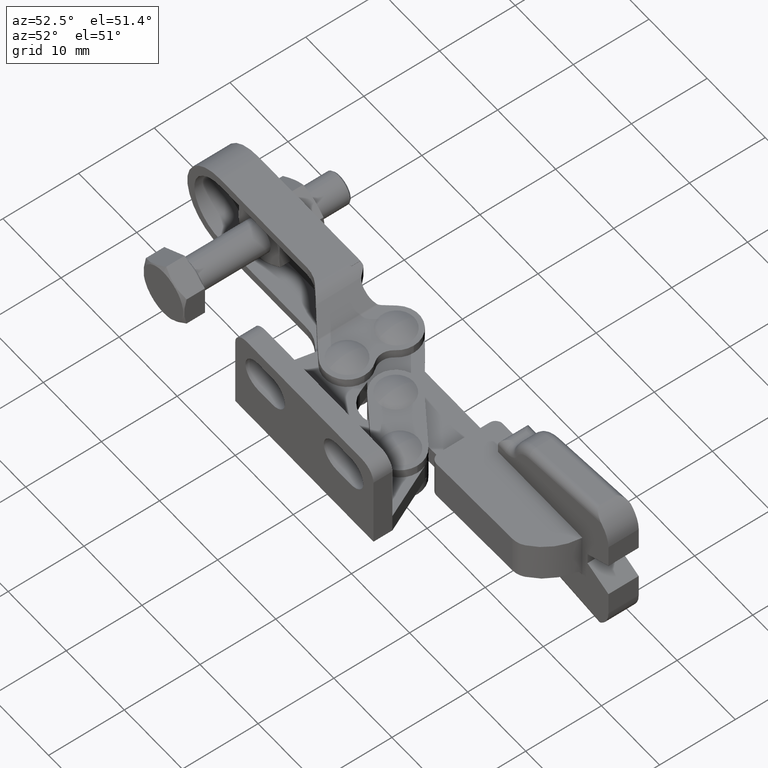
[diagram: clean part render]
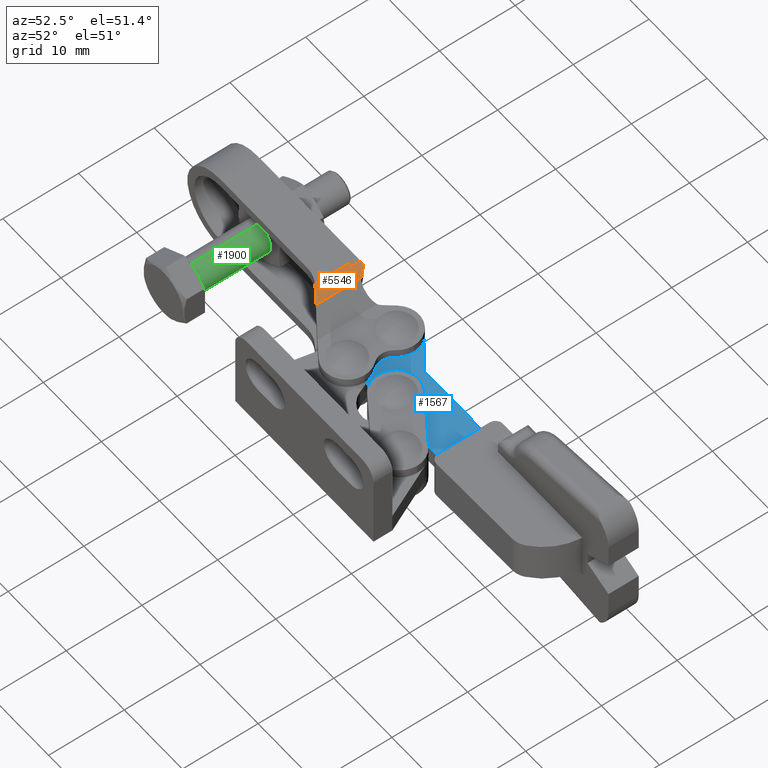
[diagram: same view with three faces highlighted in distinct colors, each labeled with its STEP entity id]
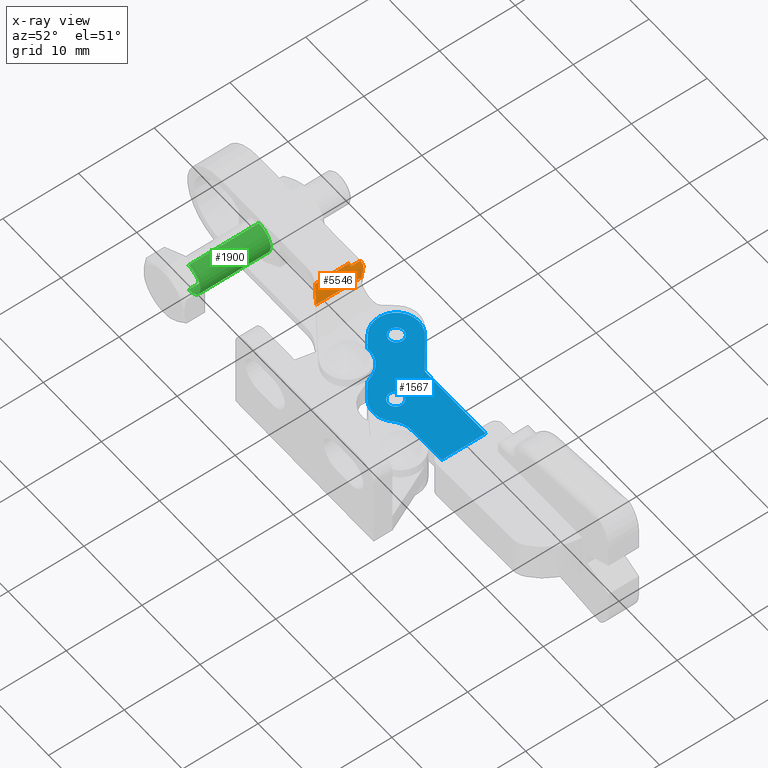
[diagram: x-ray of the same camera — body ghosted, the three highlighted faces saturated]
A machine part, auxiliary view with three faces highlighted in distinct colors.
The next image is the same camera in x-ray (body ghosted, the three faces saturated) — at least one of them is partly hidden behind the body in this view.
Their STEP definitions:

[orange] entity #5546 — the highlighted cylindrical surface (edge-blend (fillet) strip) has radius 2.5 mm, axis along (-0, -1, -0).
#161 = CARTESIAN_POINT ( 'NONE',  ( -1.190771694589143300, 11.57751467026061800, 4.930557301518804000 ) ) ;
#239 = FACE_OUTER_BOUND ( 'NONE', #7025, .T. ) ;
#408 = ORIENTED_EDGE ( 'NONE', *, *, #2439, .F. ) ;
#459 = ORIENTED_EDGE ( 'NONE', *, *, #2456, .F. ) ;
#486 = CARTESIAN_POINT ( 'NONE',  ( -2.994981057761837700, 12.81971024965994100, 5.700000000000003700 ) ) ;
#525 = ORIENTED_EDGE ( 'NONE', *, *, #1967, .F. ) ;
#558 = VERTEX_POINT ( 'NONE', #5991 ) ;
#777 = CARTESIAN_POINT ( 'NONE',  ( -1.447288955413503600, 17.85790549363638000, 5.176360654772312700 ) ) ;
#781 = VECTOR ( 'NONE', #9090, 1000.000000000000000 ) ;
#917 = DIRECTION ( 'NONE',  ( 8.308272860745645600E-016, 1.000000000000000000, 0.0000000000000000000 ) ) ;
#1015 = EDGE_CURVE ( 'NONE', #558, #6929, #3508, .T. ) ;
#1037 = CARTESIAN_POINT ( 'NONE',  ( -1.659584184231496000, 11.90037142297012800, 5.419322326891079700 ) ) ;
#1338 = DIRECTION ( 'NONE',  ( -1.000000000000000000, 1.387778780781422200E-015, 0.0000000000000000000 ) ) ;
#1386 = CARTESIAN_POINT ( 'NONE',  ( -1.190771694589143300, 11.57751467026061800, 4.930557301518804000 ) ) ;
#1430 = CARTESIAN_POINT ( 'NONE',  ( -2.957739136466280200, 12.79437083990551300, 5.699722592468653200 ) ) ;
#1619 = VERTEX_POINT ( 'NONE', #1386 ) ;
#1659 = B_SPLINE_CURVE_WITH_KNOTS ( 'NONE', 3,
 ( #5383, #4945, #9523, #5325 ),
 .UNSPECIFIED., .F., .F.,
 ( 4, 4 ),
 ( 0.001613464784808100900, 0.001773482547919055200 ),
 .UNSPECIFIED. ) ;
#1695 = EDGE_CURVE ( 'NONE', #7276, #8690, #4029, .T. ) ;
#1834 = CARTESIAN_POINT ( 'NONE',  ( -2.142370559212615900, 18.50000245742331400, 5.551414440528854600 ) ) ;
#1912 = CARTESIAN_POINT ( 'NONE',  ( -2.216557231561475700, 18.50000245742331000, 5.575722278971932500 ) ) ;
#1919 = CARTESIAN_POINT ( 'NONE',  ( -2.069504644189132000, 18.48332437619393400, 5.523482804202825700 ) ) ;
#1922 = CARTESIAN_POINT ( 'NONE',  ( -1.938645678743041500, 18.42189072394309000, 5.466987979795843200 ) ) ;
#1939 = CARTESIAN_POINT ( 'NONE',  ( -1.879568871632473000, 18.37664139310201600, 5.438010008170185600 ) ) ;
#1952 = CARTESIAN_POINT ( 'NONE',  ( -1.832446591762810300, 18.32009465725556300, 5.413258596586569400 ) ) ;
#1967 = EDGE_CURVE ( 'NONE', #3817, #1619, #6425, .T. ) ;
#2066 = EDGE_CURVE ( 'NONE', #6929, #6145, #8322, .T. ) ;
#2360 = CARTESIAN_POINT ( 'NONE',  ( -2.216557231561475700, 18.50000245742331000, 5.575722278971932500 ) ) ;
#2439 = EDGE_CURVE ( 'NONE', #558, #9355, #8946, .T. ) ;
#2450 = ORIENTED_EDGE ( 'NONE', *, *, #1695, .F. ) ;
#2456 = EDGE_CURVE ( 'NONE', #9770, #3817, #1659, .T. ) ;
#2479 = DIRECTION ( 'NONE',  ( 0.0000000000000000000, 0.0000000000000000000, -1.000000000000000000 ) ) ;
#2493 = CARTESIAN_POINT ( 'NONE',  ( -2.994981057761837700, 17.30000245742332200, 3.199999999999958000 ) ) ;
#2601 = VECTOR ( 'NONE', #3792, 1000.000000000000000 ) ;
#3179 = EDGE_CURVE ( 'NONE', #9355, #7276, #8474, .T. ) ;
#3367 = CARTESIAN_POINT ( 'NONE',  ( -2.280557762025831700, 12.32801684043337100, 5.689633658790290500 ) ) ;
#3508 = CIRCLE ( 'NONE', #5641, 2.500000000000041700 ) ;
#3697 =( BOUNDED_CURVE ( )  B_SPLINE_CURVE ( 3, ( #4563, #9203, #777, #6131 ),
 .UNSPECIFIED., .F., .T. ) 
 B_SPLINE_CURVE_WITH_KNOTS ( ( 4, 4 ),
 ( 5.196039164052508300, 5.467138166146164700 ),
 .UNSPECIFIED. ) 
 CURVE ( )  GEOMETRIC_REPRESENTATION_ITEM ( )  RATIONAL_B_SPLINE_CURVE ( ( 1.000000000000000000, 0.9938848160596398500, 0.9938848160596398500, 1.000000000000000000 ) ) 
 REPRESENTATION_ITEM ( '' )  );
#3739 = AXIS2_PLACEMENT_3D ( 'NONE', #3782, #6878, #6094 ) ;
#3782 = CARTESIAN_POINT ( 'NONE',  ( -2.994981057761837700, 21.45606182658943700, 3.199999999999958000 ) ) ;
#3792 = DIRECTION ( 'NONE',  ( -0.0000000000000000000, -1.000000000000000000, -0.0000000000000000000 ) ) ;
#3814 = CARTESIAN_POINT ( 'NONE',  ( -1.190771694589143300, 21.45606182658943700, 4.930557301518804000 ) ) ;
#3817 = VERTEX_POINT ( 'NONE', #4104 ) ;
#4029 = B_SPLINE_CURVE_WITH_KNOTS ( 'NONE', 3,
 ( #1912, #1834, #1919, #1922, #1939, #1952 ),
 .UNSPECIFIED., .F., .F.,
 ( 4, 2, 4 ),
 ( 0.002403429212512670600, 0.002636154294983271200, 0.002868879377453871500 ),
 .UNSPECIFIED. ) ;
#4054 = CARTESIAN_POINT ( 'NONE',  ( -2.994981057761837700, 12.81971024965994100, 5.700000000000003700 ) ) ;
#4104 = CARTESIAN_POINT ( 'NONE',  ( -1.190771694589143300, 17.56381426681948800, 4.930557301518804000 ) ) ;
#4159 = B_SPLINE_CURVE_WITH_KNOTS ( 'NONE', 3,
 ( #6364, #7900, #8660, #4054 ),
 .UNSPECIFIED., .F., .F.,
 ( 4, 4 ),
 ( 0.007886446763977919200, 0.007930614934361679100 ),
 .UNSPECIFIED. ) ;
#4272 = CARTESIAN_POINT ( 'NONE',  ( -2.994981057761837700, 21.45606182658943700, 5.700000000000000200 ) ) ;
#4339 = DIRECTION ( 'NONE',  ( -0.0000000000000000000, -1.000000000000000000, -0.0000000000000000000 ) ) ;
#4394 = ORIENTED_EDGE ( 'NONE', *, *, #6808, .F. ) ;
#4529 = CARTESIAN_POINT ( 'NONE',  ( -2.563228186422624500, 21.45606182658943700, 5.662435675929494900 ) ) ;
#4563 = CARTESIAN_POINT ( 'NONE',  ( -1.832446591762810300, 18.32009465725556300, 5.413258596586569400 ) ) ;
#4945 = CARTESIAN_POINT ( 'NONE',  ( -1.252955568791726600, 17.62470542969024100, 4.993588779262449200 ) ) ;
#5158 = CARTESIAN_POINT ( 'NONE',  ( -2.563228186422628100, 18.50000245742331000, 5.662435675929494900 ) ) ;
#5325 = CARTESIAN_POINT ( 'NONE',  ( -1.190771694589143300, 17.56381426681948800, 4.930557301518804000 ) ) ;
#5383 = CARTESIAN_POINT ( 'NONE',  ( -1.282216092182229900, 17.65981805775884800, 5.021108501073764600 ) ) ;
#5488 =( BOUNDED_CURVE ( )  B_SPLINE_CURVE ( 3, ( #161, #1037, #3367, #8708 ),
 .UNSPECIFIED., .F., .T. ) 
 B_SPLINE_CURVE_WITH_KNOTS ( ( 4, 4 ),
 ( 0.7645647074651308300, 1.555899007255445900 ),
 .UNSPECIFIED. ) 
 CURVE ( )  GEOMETRIC_REPRESENTATION_ITEM ( )  RATIONAL_B_SPLINE_CURVE ( ( 1.000000000000000000, 0.9484930894876992800, 0.9484930894876992800, 1.000000000000000000 ) ) 
 REPRESENTATION_ITEM ( '' )  );
#5526 = CARTESIAN_POINT ( 'NONE',  ( -2.994981057761837700, 18.50000245742331000, 3.199999999999958000 ) ) ;
#5546 = ADVANCED_FACE ( 'NONE', ( #239 ), #6886, .T. ) ;
#5560 = DIRECTION ( 'NONE',  ( 0.0000000000000000000, -1.000000000000000000, 0.0000000000000000000 ) ) ;
#5641 = AXIS2_PLACEMENT_3D ( 'NONE', #2493, #5560, #2479 ) ;
#5991 = CARTESIAN_POINT ( 'NONE',  ( -2.563228186422624500, 17.30000245742332200, 5.662435675929494900 ) ) ;
#6085 = ORIENTED_EDGE ( 'NONE', *, *, #3179, .F. ) ;
#6094 = DIRECTION ( 'NONE',  ( 0.0000000000000000000, 0.0000000000000000000, -1.000000000000000000 ) ) ;
#6131 = CARTESIAN_POINT ( 'NONE',  ( -1.282216092182229900, 17.65981805775884800, 5.021108501073764600 ) ) ;
#6145 = VERTEX_POINT ( 'NONE', #486 ) ;
#6313 = CARTESIAN_POINT ( 'NONE',  ( -1.832446591762810300, 18.32009465725556300, 5.413258596586569400 ) ) ;
#6364 = CARTESIAN_POINT ( 'NONE',  ( -2.957739136466280200, 12.79437083990551300, 5.699722592468653200 ) ) ;
#6425 = LINE ( 'NONE', #3814, #2601 ) ;
#6808 = EDGE_CURVE ( 'NONE', #8690, #9770, #3697, .T. ) ;
#6878 = DIRECTION ( 'NONE',  ( -0.0000000000000000000, -1.000000000000000000, -0.0000000000000000000 ) ) ;
#6886 = CYLINDRICAL_SURFACE ( 'NONE', #3739, 2.500000000000041700 ) ;
#6929 = VERTEX_POINT ( 'NONE', #9386 ) ;
#7025 = EDGE_LOOP ( 'NONE', ( #408, #7178, #9385, #9541, #8869, #525, #459, #4394, #2450, #6085 ) ) ;
#7178 = ORIENTED_EDGE ( 'NONE', *, *, #1015, .T. ) ;
#7276 = VERTEX_POINT ( 'NONE', #2360 ) ;
#7402 = EDGE_CURVE ( 'NONE', #1619, #7757, #5488, .T. ) ;
#7675 = CARTESIAN_POINT ( 'NONE',  ( -1.282216092182229900, 17.65981805775884800, 5.021108501073764600 ) ) ;
#7757 = VERTEX_POINT ( 'NONE', #1430 ) ;
#7900 = CARTESIAN_POINT ( 'NONE',  ( -2.970098148137557900, 12.80288211139047600, 5.699906722236230300 ) ) ;
#8125 = EDGE_CURVE ( 'NONE', #7757, #6145, #4159, .T. ) ;
#8309 = VECTOR ( 'NONE', #4339, 1000.000000000000000 ) ;
#8322 = LINE ( 'NONE', #4272, #8309 ) ;
#8474 = CIRCLE ( 'NONE', #8639, 2.500000000000042200 ) ;
#8639 = AXIS2_PLACEMENT_3D ( 'NONE', #5526, #917, #1338 ) ;
#8660 = CARTESIAN_POINT ( 'NONE',  ( -2.982512024466659200, 12.81132863776932100, 5.700000000000000200 ) ) ;
#8690 = VERTEX_POINT ( 'NONE', #6313 ) ;
#8708 = CARTESIAN_POINT ( 'NONE',  ( -2.957739136466280200, 12.79437083990551300, 5.699722592468653200 ) ) ;
#8869 = ORIENTED_EDGE ( 'NONE', *, *, #7402, .F. ) ;
#8946 = LINE ( 'NONE', #4529, #781 ) ;
#9090 = DIRECTION ( 'NONE',  ( 0.0000000000000000000, 1.000000000000000000, 0.0000000000000000000 ) ) ;
#9203 = CARTESIAN_POINT ( 'NONE',  ( -1.631827609755772700, 18.07935187884711300, 5.307881628221239500 ) ) ;
#9355 = VERTEX_POINT ( 'NONE', #5158 ) ;
#9385 = ORIENTED_EDGE ( 'NONE', *, *, #2066, .T. ) ;
#9386 = CARTESIAN_POINT ( 'NONE',  ( -2.994981057761837700, 17.30000245742332200, 5.700000000000003700 ) ) ;
#9523 = CARTESIAN_POINT ( 'NONE',  ( -1.222312787465837000, 17.59280995401543300, 4.963440774977258700 ) ) ;
#9541 = ORIENTED_EDGE ( 'NONE', *, *, #8125, .F. ) ;
#9770 = VERTEX_POINT ( 'NONE', #7675 ) ;

[blue] entity #1567 — the highlighted planar face has unit normal (0, 0, 1).
#71 = AXIS2_PLACEMENT_3D ( 'NONE', #1261, #6615, #2061 ) ;
#406 = CIRCLE ( 'NONE', #6171, 0.9999999999999995600 ) ;
#498 = EDGE_CURVE ( 'NONE', #9502, #2025, #4531, .T. ) ;
#642 = CARTESIAN_POINT ( 'NONE',  ( 10.58575087525053200, 12.31111673609393800, 1.199999999999997500 ) ) ;
#708 = EDGE_LOOP ( 'NONE', ( #5678, #6751 ) ) ;
#886 = CARTESIAN_POINT ( 'NONE',  ( 7.938310806159001300, 11.34870487134344200, 1.199999999999997500 ) ) ;
#982 = CARTESIAN_POINT ( 'NONE',  ( 4.791914488030925200, 17.60000245742333300, 1.199999999999997500 ) ) ;
#1004 = VECTOR ( 'NONE', #1573, 1000.000000000000000 ) ;
#1016 = DIRECTION ( 'NONE',  ( 0.7890826525164075200, -0.6142870399883676400, 0.0000000000000000000 ) ) ;
#1018 = DIRECTION ( 'NONE',  ( 0.9999999999956428200, 2.952003683165395200E-006, 0.0000000000000000000 ) ) ;
#1143 = EDGE_CURVE ( 'NONE', #9437, #4888, #6372, .T. ) ;
#1169 = CIRCLE ( 'NONE', #7943, 3.000000000000213200 ) ;
#1216 = ORIENTED_EDGE ( 'NONE', *, *, #1831, .T. ) ;
#1220 = CARTESIAN_POINT ( 'NONE',  ( 12.58575087524181900, 12.31112264010130600, 1.199999999999997500 ) ) ;
#1261 = CARTESIAN_POINT ( 'NONE',  ( 11.58575087524617700, 12.31111968809762100, 1.199999999999997500 ) ) ;
#1331 = CARTESIAN_POINT ( 'NONE',  ( 7.561161039115455100, 12.25385678607225300, 1.199999999999997500 ) ) ;
#1483 = AXIS2_PLACEMENT_3D ( 'NONE', #5286, #5261, #5272 ) ;
#1567 = ADVANCED_FACE ( 'NONE', ( #3621, #3505, #3119 ), #9790, .T. ) ;
#1573 = DIRECTION ( 'NONE',  ( -0.9999999999956428200, -2.952003684069184500E-006, -0.0000000000000000000 ) ) ;
#1686 = VERTEX_POINT ( 'NONE', #1762 ) ;
#1762 = CARTESIAN_POINT ( 'NONE',  ( 15.85970585166633000, 11.10003512955694100, 1.199999999999997500 ) ) ;
#1831 = EDGE_CURVE ( 'NONE', #2716, #1686, #1169, .T. ) ;
#2015 = CIRCLE ( 'NONE', #4401, 3.000000000000001300 ) ;
#2025 = VERTEX_POINT ( 'NONE', #4162 ) ;
#2048 = CARTESIAN_POINT ( 'NONE',  ( 3.791914488035282600, 17.59999950541965000, 1.199999999999997500 ) ) ;
#2061 = DIRECTION ( 'NONE',  ( 0.9999999999956428200, 2.952003684900116200E-006, 0.0000000000000000000 ) ) ;
#2205 = EDGE_CURVE ( 'NONE', #4888, #9314, #2710, .T. ) ;
#2330 = DIRECTION ( 'NONE',  ( 0.0000000000000000000, 0.0000000000000000000, 1.000000000000000000 ) ) ;
#2374 = LINE ( 'NONE', #6785, #6073 ) ;
#2403 = CARTESIAN_POINT ( 'NONE',  ( 10.44633366691438600, 17.00001914928718300, 1.199999999999997500 ) ) ;
#2521 = VERTEX_POINT ( 'NONE', #6440 ) ;
#2536 = VECTOR ( 'NONE', #5344, 999.9999999999998900 ) ;
#2617 = EDGE_CURVE ( 'NONE', #2025, #9437, #5970, .T. ) ;
#2668 = VERTEX_POINT ( 'NONE', #5726 ) ;
#2710 = CIRCLE ( 'NONE', #1483, 2.999999999999999100 ) ;
#2716 = VERTEX_POINT ( 'NONE', #6977 ) ;
#2717 = EDGE_CURVE ( 'NONE', #2668, #4697, #5386, .T. ) ;
#2806 = CARTESIAN_POINT ( 'NONE',  ( 15.85971470767755200, 8.100035129569814500, 1.199999999999997500 ) ) ;
#2833 = DIRECTION ( 'NONE',  ( 0.0000000000000000000, -0.0000000000000000000, -1.000000000000000000 ) ) ;
#2835 = DIRECTION ( 'NONE',  ( 0.9999999999956427100, 2.952003684321666400E-006, 0.0000000000000000000 ) ) ;
#2879 = VECTOR ( 'NONE', #6955, 1000.000000000000100 ) ;
#2941 = CARTESIAN_POINT ( 'NONE',  ( 2.949053368065685600, 15.23275449987403700, 1.199999999999997500 ) ) ;
#3079 = LINE ( 'NONE', #3263, #3346 ) ;
#3119 = FACE_OUTER_BOUND ( 'NONE', #5112, .T. ) ;
#3263 = CARTESIAN_POINT ( 'NONE',  ( 15.85970585166633000, 11.10003512955694100, 1.199999999999997500 ) ) ;
#3346 = VECTOR ( 'NONE', #8597, 1000.000000000000000 ) ;
#3350 = VECTOR ( 'NONE', #8546, 1000.000000000000100 ) ;
#3458 = VERTEX_POINT ( 'NONE', #642 ) ;
#3482 = DIRECTION ( 'NONE',  ( 0.0000000000000000000, 0.0000000000000000000, 1.000000000000000000 ) ) ;
#3505 = FACE_BOUND ( 'NONE', #708, .T. ) ;
#3569 = EDGE_CURVE ( 'NONE', #3966, #5978, #406, .T. ) ;
#3621 = FACE_BOUND ( 'NONE', #3916, .T. ) ;
#3681 = EDGE_CURVE ( 'NONE', #5978, #3966, #3974, .T. ) ;
#3700 = CIRCLE ( 'NONE', #71, 1.000000000000000400 ) ;
#3916 = EDGE_LOOP ( 'NONE', ( #4433, #4932 ) ) ;
#3966 = VERTEX_POINT ( 'NONE', #2048 ) ;
#3974 = CIRCLE ( 'NONE', #5677, 0.9999999999999995600 ) ;
#4044 = VERTEX_POINT ( 'NONE', #1220 ) ;
#4162 = CARTESIAN_POINT ( 'NONE',  ( 6.634775607996048500, 19.96725041497269600, 1.199999999999997500 ) ) ;
#4178 = EDGE_CURVE ( 'NONE', #2668, #9502, #9387, .T. ) ;
#4401 = AXIS2_PLACEMENT_3D ( 'NONE', #6908, #2330, #7682 ) ;
#4433 = ORIENTED_EDGE ( 'NONE', *, *, #7584, .F. ) ;
#4523 = CARTESIAN_POINT ( 'NONE',  ( 11.58575087524617700, 12.31111968809762100, 1.199999999999997500 ) ) ;
#4531 = LINE ( 'NONE', #5281, #2536 ) ;
#4697 = VERTEX_POINT ( 'NONE', #7831 ) ;
#4888 = VERTEX_POINT ( 'NONE', #5804 ) ;
#4932 = ORIENTED_EDGE ( 'NONE', *, *, #7184, .F. ) ;
#5007 = DIRECTION ( 'NONE',  ( 0.9999999999956428200, 2.952003683165395200E-006, 0.0000000000000000000 ) ) ;
#5032 = DIRECTION ( 'NONE',  ( 0.0000000000000000000, 0.0000000000000000000, 1.000000000000000000 ) ) ;
#5034 = CARTESIAN_POINT ( 'NONE',  ( 4.791914488030925200, 17.60000245742333300, 1.199999999999997500 ) ) ;
#5112 = EDGE_LOOP ( 'NONE', ( #7062, #7543, #8215, #8496, #8581, #8877, #9077, #9177, #9775, #1216, #7334 ) ) ;
#5200 = CARTESIAN_POINT ( 'NONE',  ( 10.44633366691438600, 17.00001914928718300, 1.199999999999997500 ) ) ;
#5261 = DIRECTION ( 'NONE',  ( 0.0000000000000000000, -0.0000000000000000000, -1.000000000000000000 ) ) ;
#5272 = DIRECTION ( 'NONE',  ( 0.9999999999956427100, 2.952003684321877300E-006, 0.0000000000000000000 ) ) ;
#5281 = CARTESIAN_POINT ( 'NONE',  ( 6.634775607996048500, 19.96725041497269600, 1.199999999999997500 ) ) ;
#5286 = CARTESIAN_POINT ( 'NONE',  ( 4.791933676054844300, 11.10000245745170300, 1.199999999999997500 ) ) ;
#5312 = DIRECTION ( 'NONE',  ( 0.9999999999956428200, 2.952003684900116200E-006, 0.0000000000000000000 ) ) ;
#5344 = DIRECTION ( 'NONE',  ( -0.7890826525164090800, 0.6142870399883658700, 0.0000000000000000000 ) ) ;
#5361 = LINE ( 'NONE', #886, #3350 ) ;
#5386 = LINE ( 'NONE', #7158, #2879 ) ;
#5578 = EDGE_CURVE ( 'NONE', #9519, #2716, #2015, .T. ) ;
#5677 = AXIS2_PLACEMENT_3D ( 'NONE', #5034, #5032, #5007 ) ;
#5678 = ORIENTED_EDGE ( 'NONE', *, *, #3681, .F. ) ;
#5726 = CARTESIAN_POINT ( 'NONE',  ( 20.99219719694409400, 17.00005028071517500, 1.199999999999997500 ) ) ;
#5804 = CARTESIAN_POINT ( 'NONE',  ( 4.431971470700254700, 14.07832870061517700, 1.199999999999997500 ) ) ;
#5818 = DIRECTION ( 'NONE',  ( 0.9999999999956427100, 2.952003684321745100E-006, 0.0000000000000000000 ) ) ;
#5822 = DIRECTION ( 'NONE',  ( 0.0000000000000000000, 0.0000000000000000000, 1.000000000000000000 ) ) ;
#5830 = CARTESIAN_POINT ( 'NONE',  ( 4.791914488030925200, 17.60000245742333300, 1.199999999999997500 ) ) ;
#5970 = CIRCLE ( 'NONE', #7632, 3.000000000000133200 ) ;
#5978 = VERTEX_POINT ( 'NONE', #9493 ) ;
#6017 = CARTESIAN_POINT ( 'NONE',  ( 9.742887084705140300, 9.943873809547458400, 1.199999999999997500 ) ) ;
#6073 = VECTOR ( 'NONE', #6750, 1000.000000000000000 ) ;
#6171 = AXIS2_PLACEMENT_3D ( 'NONE', #982, #3482, #1018 ) ;
#6372 = LINE ( 'NONE', #6778, #6749 ) ;
#6440 = CARTESIAN_POINT ( 'NONE',  ( 7.938310806159001300, 11.34870487134344200, 1.199999999999997500 ) ) ;
#6615 = DIRECTION ( 'NONE',  ( 0.0000000000000000000, 0.0000000000000000000, 1.000000000000000000 ) ) ;
#6749 = VECTOR ( 'NONE', #1016, 1000.000000000000100 ) ;
#6750 = DIRECTION ( 'NONE',  ( 0.3846181095401543000, -0.9230757876868821400, 0.0000000000000000000 ) ) ;
#6751 = ORIENTED_EDGE ( 'NONE', *, *, #3569, .F. ) ;
#6754 = EDGE_CURVE ( 'NONE', #9314, #2521, #2374, .T. ) ;
#6778 = CARTESIAN_POINT ( 'NONE',  ( 2.949053368065685600, 15.23275449987403700, 1.199999999999997500 ) ) ;
#6785 = CARTESIAN_POINT ( 'NONE',  ( 7.938310806159001300, 11.34870487134344200, 1.199999999999997500 ) ) ;
#6862 = AXIS2_PLACEMENT_3D ( 'NONE', #4523, #9848, #5312 ) ;
#6908 = CARTESIAN_POINT ( 'NONE',  ( 11.58575087524617700, 12.31111968809762100, 1.199999999999997500 ) ) ;
#6955 = DIRECTION ( 'NONE',  ( 2.952003683872508900E-006, -0.9999999999956428200, 0.0000000000000000000 ) ) ;
#6977 = CARTESIAN_POINT ( 'NONE',  ( 13.72273279146178900, 10.20557740883377600, 1.199999999999997500 ) ) ;
#7062 = ORIENTED_EDGE ( 'NONE', *, *, #2717, .F. ) ;
#7158 = CARTESIAN_POINT ( 'NONE',  ( 20.99222346977688100, 8.100050280754587100, 1.199999999999997500 ) ) ;
#7184 = EDGE_CURVE ( 'NONE', #3458, #4044, #9761, .T. ) ;
#7334 = ORIENTED_EDGE ( 'NONE', *, *, #7353, .T. ) ;
#7353 = EDGE_CURVE ( 'NONE', #1686, #4697, #3079, .T. ) ;
#7543 = ORIENTED_EDGE ( 'NONE', *, *, #4178, .T. ) ;
#7584 = EDGE_CURVE ( 'NONE', #4044, #3458, #3700, .T. ) ;
#7632 = AXIS2_PLACEMENT_3D ( 'NONE', #5830, #5822, #5818 ) ;
#7682 = DIRECTION ( 'NONE',  ( 0.9999999999956427100, 2.952003684321875200E-006, 0.0000000000000000000 ) ) ;
#7831 = CARTESIAN_POINT ( 'NONE',  ( 20.99221437773261200, 11.18000723304593800, 1.199999999999997500 ) ) ;
#7943 = AXIS2_PLACEMENT_3D ( 'NONE', #2806, #2833, #2835 ) ;
#7995 = EDGE_CURVE ( 'NONE', #2521, #9519, #5361, .T. ) ;
#8215 = ORIENTED_EDGE ( 'NONE', *, *, #498, .T. ) ;
#8496 = ORIENTED_EDGE ( 'NONE', *, *, #2617, .T. ) ;
#8546 = DIRECTION ( 'NONE',  ( 0.7890826525169242200, -0.6142870399877038400, 0.0000000000000000000 ) ) ;
#8581 = ORIENTED_EDGE ( 'NONE', *, *, #1143, .T. ) ;
#8597 = DIRECTION ( 'NONE',  ( 0.9998786307653173600, 0.01557959366845623900, 0.0000000000000000000 ) ) ;
#8835 = DIRECTION ( 'NONE',  ( 0.9999999999956428200, 2.952003684069184500E-006, 0.0000000000000000000 ) ) ;
#8877 = ORIENTED_EDGE ( 'NONE', *, *, #2205, .T. ) ;
#9004 = AXIS2_PLACEMENT_3D ( 'NONE', #9234, #9843, #8835 ) ;
#9077 = ORIENTED_EDGE ( 'NONE', *, *, #6754, .T. ) ;
#9177 = ORIENTED_EDGE ( 'NONE', *, *, #7995, .T. ) ;
#9234 = CARTESIAN_POINT ( 'NONE',  ( 15.85971470767755200, 8.100035129569814500, 1.199999999999997500 ) ) ;
#9314 = VERTEX_POINT ( 'NONE', #1331 ) ;
#9387 = LINE ( 'NONE', #2403, #1004 ) ;
#9437 = VERTEX_POINT ( 'NONE', #2941 ) ;
#9493 = CARTESIAN_POINT ( 'NONE',  ( 5.791914488026567800, 17.60000540942701600, 1.199999999999997500 ) ) ;
#9502 = VERTEX_POINT ( 'NONE', #5200 ) ;
#9519 = VERTEX_POINT ( 'NONE', #6017 ) ;
#9761 = CIRCLE ( 'NONE', #6862, 1.000000000000000400 ) ;
#9775 = ORIENTED_EDGE ( 'NONE', *, *, #5578, .T. ) ;
#9790 = PLANE ( 'NONE',  #9004 ) ;
#9843 = DIRECTION ( 'NONE',  ( 0.0000000000000000000, -0.0000000000000000000, 1.000000000000000000 ) ) ;
#9848 = DIRECTION ( 'NONE',  ( 0.0000000000000000000, 0.0000000000000000000, 1.000000000000000000 ) ) ;

[green] entity #1900 — the highlighted cylindrical surface (edge-blend (fillet) strip) has radius 2.05 mm, axis along (-0, -1, -0).
#496 = AXIS2_PLACEMENT_3D ( 'NONE', #1577, #6911, #2331 ) ;
#750 = DIRECTION ( 'NONE',  ( 0.0000000000000000000, 0.0000000000000000000, 1.000000000000000000 ) ) ;
#770 = DIRECTION ( 'NONE',  ( 0.0000000000000000000, 1.000000000000000000, 0.0000000000000000000 ) ) ;
#772 = CARTESIAN_POINT ( 'NONE',  ( -15.35328888441246100, 5.600002457423313400, -3.071844983593003200E-015 ) ) ;
#791 = VERTEX_POINT ( 'NONE', #9160 ) ;
#1577 = CARTESIAN_POINT ( 'NONE',  ( -15.35328888441246100, 14.90000245742331400, -3.071844983593003200E-015 ) ) ;
#1691 = CIRCLE ( 'NONE', #496, 2.049999999999999800 ) ;
#1770 = VECTOR ( 'NONE', #9130, 1000.000000000000000 ) ;
#1900 = ADVANCED_FACE ( 'NONE', ( #6928 ), #5321, .T. ) ;
#2164 = AXIS2_PLACEMENT_3D ( 'NONE', #772, #770, #750 ) ;
#2331 = DIRECTION ( 'NONE',  ( 0.0000000000000000000, 0.0000000000000000000, -1.000000000000000000 ) ) ;
#2442 = LINE ( 'NONE', #9816, #1770 ) ;
#2672 = EDGE_CURVE ( 'NONE', #9859, #7277, #5652, .T. ) ;
#2988 = CARTESIAN_POINT ( 'NONE',  ( -15.35328888441246100, 24.15000245742331600, -3.071844983593003200E-015 ) ) ;
#3268 = EDGE_LOOP ( 'NONE', ( #8184, #4318, #7847, #6537 ) ) ;
#3296 = DIRECTION ( 'NONE',  ( -0.0000000000000000000, -1.000000000000000000, -0.0000000000000000000 ) ) ;
#3420 = DIRECTION ( 'NONE',  ( 0.0000000000000000000, 0.0000000000000000000, -1.000000000000000000 ) ) ;
#4058 = EDGE_CURVE ( 'NONE', #6178, #7277, #4213, .T. ) ;
#4213 = CIRCLE ( 'NONE', #2164, 2.049999999999999800 ) ;
#4318 = ORIENTED_EDGE ( 'NONE', *, *, #5501, .T. ) ;
#5321 = CYLINDRICAL_SURFACE ( 'NONE', #6990, 2.049999999999999800 ) ;
#5501 = EDGE_CURVE ( 'NONE', #791, #6178, #2442, .T. ) ;
#5652 = LINE ( 'NONE', #5882, #5982 ) ;
#5853 = DIRECTION ( 'NONE',  ( -0.0000000000000000000, -1.000000000000000000, -0.0000000000000000000 ) ) ;
#5882 = CARTESIAN_POINT ( 'NONE',  ( -15.35328888441246100, 24.15000245742331600, -2.050000000000002900 ) ) ;
#5982 = VECTOR ( 'NONE', #5853, 1000.000000000000000 ) ;
#6178 = VERTEX_POINT ( 'NONE', #9730 ) ;
#6537 = ORIENTED_EDGE ( 'NONE', *, *, #2672, .F. ) ;
#6911 = DIRECTION ( 'NONE',  ( -0.0000000000000000000, 1.000000000000000000, -0.0000000000000000000 ) ) ;
#6928 = FACE_OUTER_BOUND ( 'NONE', #3268, .T. ) ;
#6990 = AXIS2_PLACEMENT_3D ( 'NONE', #2988, #3296, #3420 ) ;
#7246 = EDGE_CURVE ( 'NONE', #791, #9859, #1691, .T. ) ;
#7277 = VERTEX_POINT ( 'NONE', #8468 ) ;
#7847 = ORIENTED_EDGE ( 'NONE', *, *, #4058, .T. ) ;
#8184 = ORIENTED_EDGE ( 'NONE', *, *, #7246, .F. ) ;
#8457 = CARTESIAN_POINT ( 'NONE',  ( -15.35328888441246100, 14.90000245742331400, -2.050000000000002900 ) ) ;
#8468 = CARTESIAN_POINT ( 'NONE',  ( -15.35328888441246100, 5.600002457423313400, -2.050000000000002900 ) ) ;
#9130 = DIRECTION ( 'NONE',  ( -0.0000000000000000000, -1.000000000000000000, -0.0000000000000000000 ) ) ;
#9160 = CARTESIAN_POINT ( 'NONE',  ( -15.35328888441246100, 14.90000245742331400, 2.049999999999996700 ) ) ;
#9730 = CARTESIAN_POINT ( 'NONE',  ( -15.35328888441246100, 5.600002457423313400, 2.049999999999996700 ) ) ;
#9816 = CARTESIAN_POINT ( 'NONE',  ( -15.35328888441246100, 24.15000245742331600, 2.049999999999996700 ) ) ;
#9859 = VERTEX_POINT ( 'NONE', #8457 ) ;